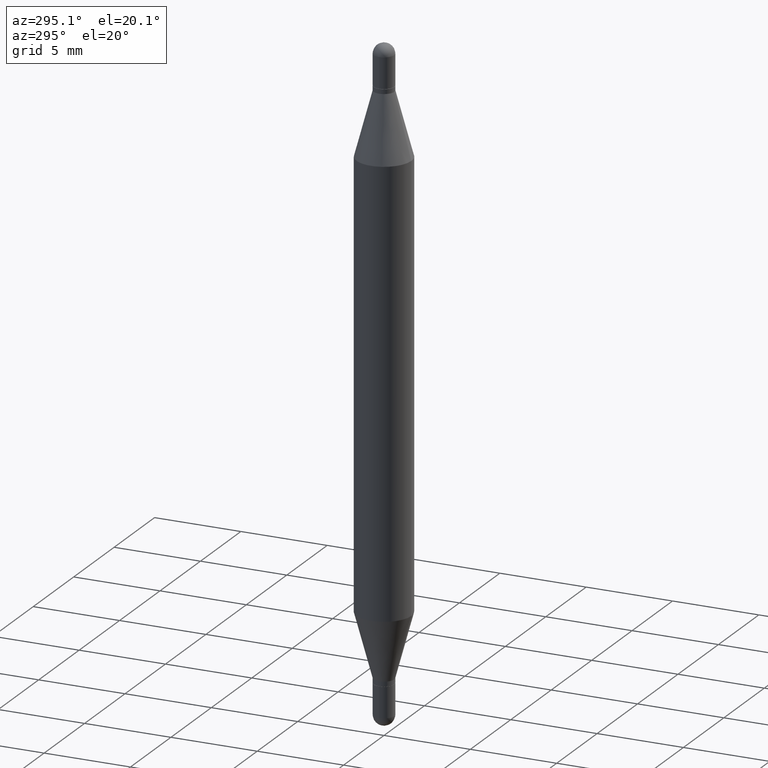
[diagram: clean part render]
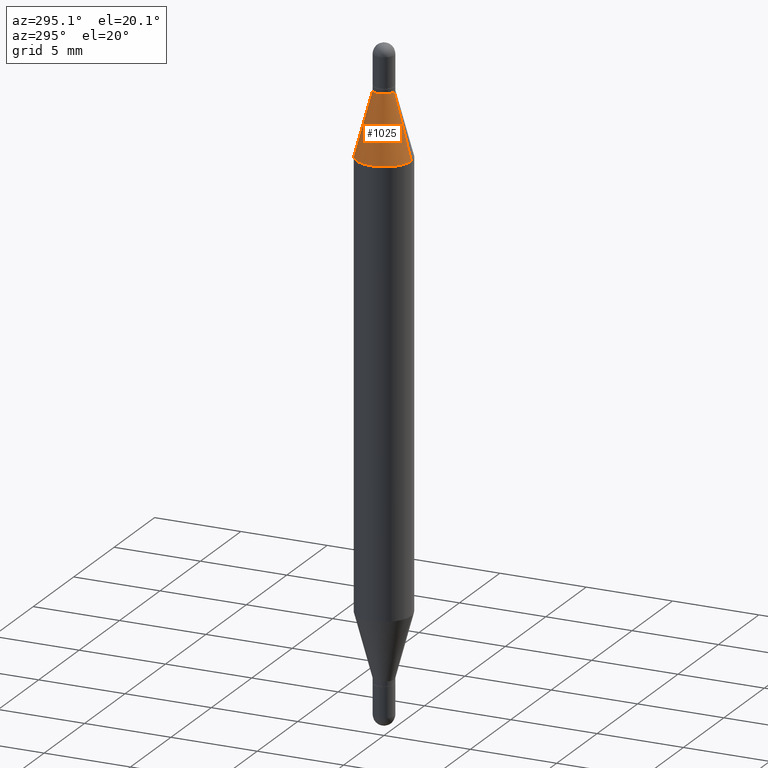
[diagram: same view with one face highlighted and labeled with its STEP entity id]
A machine part, auxiliary view. The second image highlights one B-rep face of the part: STEP entity #1025.
In plain terms, the highlighted conical surface has half-angle 15 deg.
Its self-contained STEP definition (entity closure, byte-faithful):
#17 = CARTESIAN_POINT ( 'NONE',  ( -1.637504747917063431E-16, -0.02345000000000002291, -0.1039999999999999536 ) ) ;
#56 = CARTESIAN_POINT ( 'NONE',  ( 1.608786780477741210E-16, 0.02344999999999928045, -0.1040000000000001201 ) ) ;
#90 = VERTEX_POINT ( 'NONE', #779 ) ;
#91 = LINE ( 'NONE', #266, #97 ) ;
#97 = VECTOR ( 'NONE', #600, 39.37007874015748143 ) ;
#104 = EDGE_LOOP ( 'NONE', ( #138, #1011, #895, #818 ) ) ;
#138 = ORIENTED_EDGE ( 'NONE', *, *, #457, .F. ) ;
#261 = CARTESIAN_POINT ( 'NONE',  ( 3.413861780679579577E-29, -3.707982065709483135E-16, -0.1040000000000000369 ) ) ;
#266 = CARTESIAN_POINT ( 'NONE',  ( -1.637504747917063431E-16, -0.02345000000000002291, -0.1039999999999999536 ) ) ;
#284 = DIRECTION ( 'NONE',  ( 2.445459728280500552E-29, 3.479601466901707095E-15, 1.000000000000000000 ) ) ;
#449 = AXIS2_PLACEMENT_3D ( 'NONE', #969, #284, #964 ) ;
#457 = EDGE_CURVE ( 'NONE', #1048, #710, #599, .T. ) ;
#523 = EDGE_CURVE ( 'NONE', #1048, #90, #643, .T. ) ;
#525 = VERTEX_POINT ( 'NONE', #1013 ) ;
#564 = VECTOR ( 'NONE', #660, 39.37007874015748854 ) ;
#591 = CIRCLE ( 'NONE', #449, 0.06250000000000000000 ) ;
#599 = CIRCLE ( 'NONE', #1051, 0.02344999999999965168 ) ;
#600 = DIRECTION ( 'NONE',  ( -1.807323732225332111E-15, -0.2588190451025252359, -0.9659258262890670910 ) ) ;
#609 = CONICAL_SURFACE ( 'NONE', #955, 0.02344999999999965168, 0.2617993877991505736 ) ;
#643 = LINE ( 'NONE', #56, #564 ) ;
#648 = DIRECTION ( 'NONE',  ( 2.445459728280500552E-29, 3.479601466901707095E-15, 1.000000000000000000 ) ) ;
#660 = DIRECTION ( 'NONE',  ( 1.775627540710967075E-15, 0.2588190451025184635, -0.9659258262890689783 ) ) ;
#677 = DIRECTION ( 'NONE',  ( -2.445459728280500552E-29, -3.479601466901707095E-15, -1.000000000000000000 ) ) ;
#693 = DIRECTION ( 'NONE',  ( -6.982962677686265133E-15, -1.000000000000000000, 3.640522379616609463E-15 ) ) ;
#710 = VERTEX_POINT ( 'NONE', #17 ) ;
#756 = EDGE_CURVE ( 'NONE', #90, #525, #591, .T. ) ;
#779 = CARTESIAN_POINT ( 'NONE',  ( 4.287811248607512417E-16, 0.06249999999999911876, -0.2497365840355655620 ) ) ;
#818 = ORIENTED_EDGE ( 'NONE', *, *, #1074, .F. ) ;
#895 = ORIENTED_EDGE ( 'NONE', *, *, #756, .T. ) ;
#942 = FACE_OUTER_BOUND ( 'NONE', #104, .T. ) ;
#951 = CARTESIAN_POINT ( 'NONE',  ( 1.608786780477752056E-16, 0.02344999999999928045, -0.1040000000000001201 ) ) ;
#955 = AXIS2_PLACEMENT_3D ( 'NONE', #261, #677, #693 ) ;
#964 = DIRECTION ( 'NONE',  ( -6.982962677686265922E-15, -1.000000000000000000, 3.278217592397115862E-15 ) ) ;
#969 = CARTESIAN_POINT ( 'NONE',  ( 3.057468833483437762E-29, -8.779034381623444770E-16, -0.2497365840355653399 ) ) ;
#1003 = DIRECTION ( 'NONE',  ( -6.982962677686265133E-15, -1.000000000000000000, 3.640522379616609463E-15 ) ) ;
#1011 = ORIENTED_EDGE ( 'NONE', *, *, #523, .T. ) ;
#1013 = CARTESIAN_POINT ( 'NONE',  ( -4.364351673553610517E-16, -0.06250000000000087430, -0.2497365840355651456 ) ) ;
#1025 = ADVANCED_FACE ( 'NONE', ( #942 ), #609, .T. ) ;
#1048 = VERTEX_POINT ( 'NONE', #951 ) ;
#1051 = AXIS2_PLACEMENT_3D ( 'NONE', #1082, #648, #1003 ) ;
#1074 = EDGE_CURVE ( 'NONE', #710, #525, #91, .T. ) ;
#1082 = CARTESIAN_POINT ( 'NONE',  ( 3.413861780679579577E-29, -3.707982065709483135E-16, -0.1040000000000000369 ) ) ;